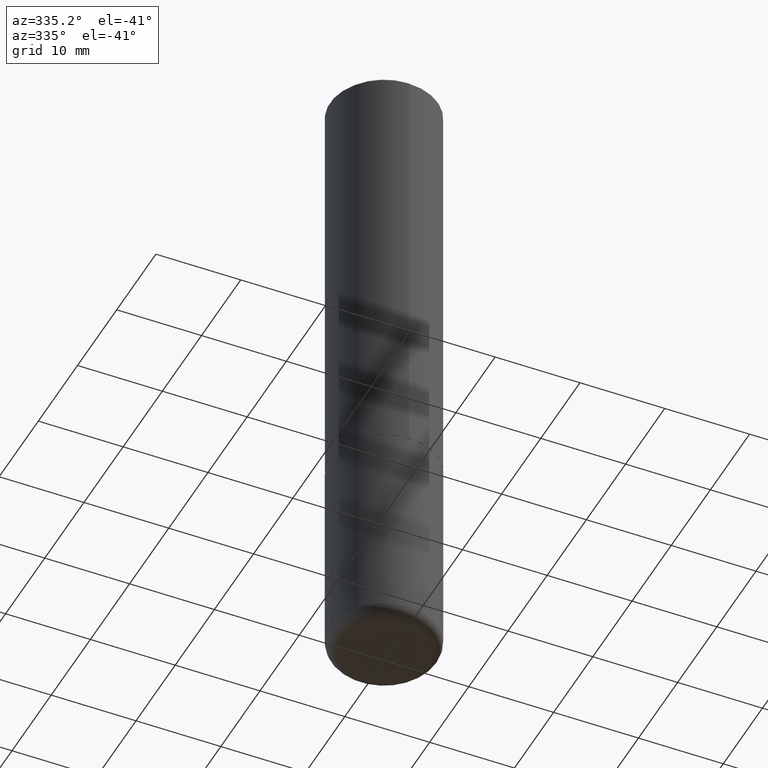
[diagram: clean part render]
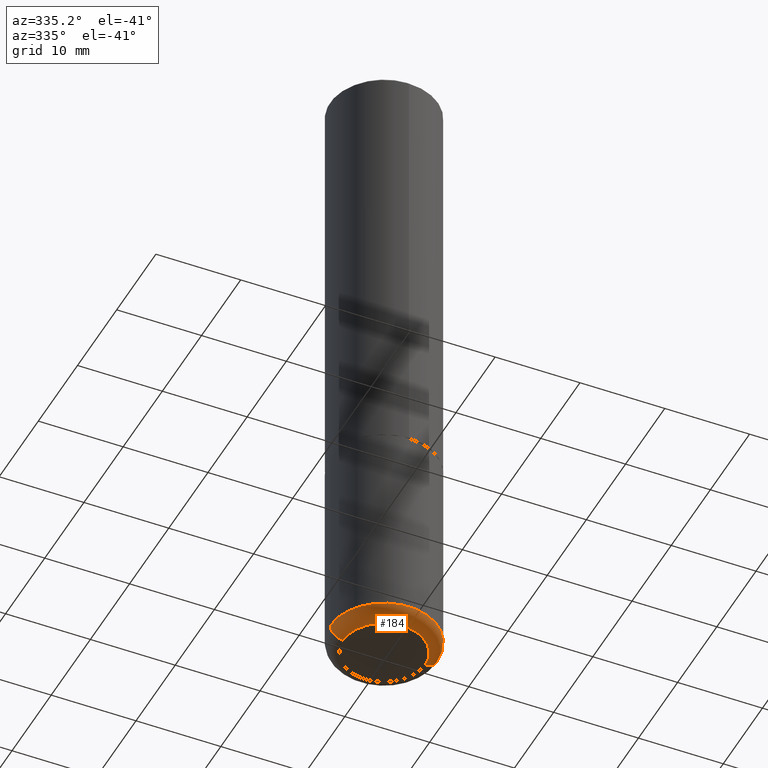
[diagram: same view with one face highlighted and labeled with its STEP entity id]
A machine part, auxiliary view. The second image highlights one B-rep face of the part: STEP entity #184.
In plain terms, the highlighted toroidal blend (fillet) surface has major radius 4.826 mm and minor (blend) radius 1.524 mm.
Its self-contained STEP definition (entity closure, byte-faithful):
#6 = EDGE_CURVE ( 'NONE', #182, #209, #66, .T. ) ;
#10 = DIRECTION ( 'NONE',  ( 1.000000000000000000, -6.982962677686265133E-15, 4.883557194083112340E-29 ) ) ;
#11 = ORIENTED_EDGE ( 'NONE', *, *, #285, .F. ) ;
#13 = AXIS2_PLACEMENT_3D ( 'NONE', #350, #319, #129 ) ;
#34 = DIRECTION ( 'NONE',  ( -1.000000000000000000, 7.105427357600997914E-15, 0.000000000000000000 ) ) ;
#51 = VERTEX_POINT ( 'NONE', #186 ) ;
#61 = DIRECTION ( 'NONE',  ( 1.000000000000000000, -6.982962677686275388E-15, 0.000000000000000000 ) ) ;
#66 = CIRCLE ( 'NONE', #13, 0.1899999999999999745 ) ;
#67 = AXIS2_PLACEMENT_3D ( 'NONE', #329, #231, #34 ) ;
#73 = CIRCLE ( 'NONE', #290, 0.05999999999999966471 ) ;
#89 = ORIENTED_EDGE ( 'NONE', *, *, #6, .T. ) ;
#105 = TOROIDAL_SURFACE ( 'NONE', #347, 0.1899999999999999745, 0.05999999999999968553 ) ;
#128 = FACE_OUTER_BOUND ( 'NONE', #229, .T. ) ;
#129 = DIRECTION ( 'NONE',  ( 1.000000000000000000, -6.982962677686273021E-15, 0.000000000000000000 ) ) ;
#148 = AXIS2_PLACEMENT_3D ( 'NONE', #292, #325, #260 ) ;
#149 = EDGE_CURVE ( 'NONE', #209, #239, #73, .T. ) ;
#182 = VERTEX_POINT ( 'NONE', #411 ) ;
#184 = ADVANCED_FACE ( 'NONE', ( #128 ), #105, .T. ) ;
#185 = ORIENTED_EDGE ( 'NONE', *, *, #149, .T. ) ;
#186 = CARTESIAN_POINT ( 'NONE',  ( -0.2499999999999998335, -8.488598296798600727E-15, -2.940000000000000391 ) ) ;
#197 = CARTESIAN_POINT ( 'NONE',  ( 0.1899999999999999745, -1.180120692528982640E-14, -2.999999999999999556 ) ) ;
#208 = CARTESIAN_POINT ( 'NONE',  ( 7.189678290184301639E-29, -1.026495513619884961E-14, -2.940000000000000391 ) ) ;
#209 = VERTEX_POINT ( 'NONE', #197 ) ;
#216 = CARTESIAN_POINT ( 'NONE',  ( 0.1899999999999999745, -1.159171804495923808E-14, -2.940000000000000391 ) ) ;
#225 = ORIENTED_EDGE ( 'NONE', *, *, #327, .F. ) ;
#229 = EDGE_LOOP ( 'NONE', ( #225, #89, #185, #11 ) ) ;
#231 = DIRECTION ( 'NONE',  ( 7.105427357601001859E-15, 1.000000000000000000, -3.491481338843145583E-15 ) ) ;
#239 = VERTEX_POINT ( 'NONE', #377 ) ;
#250 = DIRECTION ( 'NONE',  ( -6.982962677686266711E-15, -1.000000000000000000, 3.491481338843145583E-15 ) ) ;
#260 = DIRECTION ( 'NONE',  ( 1.000000000000000000, -6.982962677686262766E-15, 0.000000000000000000 ) ) ;
#273 = CIRCLE ( 'NONE', #67, 0.05999999999999966471 ) ;
#285 = EDGE_CURVE ( 'NONE', #51, #239, #295, .T. ) ;
#290 = AXIS2_PLACEMENT_3D ( 'NONE', #216, #250, #61 ) ;
#292 = CARTESIAN_POINT ( 'NONE',  ( 7.189678290184301639E-29, -1.026495513619884961E-14, -2.940000000000000391 ) ) ;
#295 = CIRCLE ( 'NONE', #148, 0.2500000000000000000 ) ;
#303 = DIRECTION ( 'NONE',  ( -2.445468806185136597E-29, 3.491481338843145583E-15, 1.000000000000000000 ) ) ;
#319 = DIRECTION ( 'NONE',  ( -2.445468806185136597E-29, 3.491481338843145583E-15, 1.000000000000000000 ) ) ;
#325 = DIRECTION ( 'NONE',  ( -2.445468806185136597E-29, 3.491481338843145583E-15, 1.000000000000000000 ) ) ;
#327 = EDGE_CURVE ( 'NONE', #182, #51, #273, .T. ) ;
#329 = CARTESIAN_POINT ( 'NONE',  ( -0.1899999999999999745, -8.914923938254659640E-15, -2.940000000000000391 ) ) ;
#347 = AXIS2_PLACEMENT_3D ( 'NONE', #208, #303, #10 ) ;
#350 = CARTESIAN_POINT ( 'NONE',  ( 7.336406418555408669E-29, -1.047444401652943478E-14, -2.999999999999999556 ) ) ;
#377 = CARTESIAN_POINT ( 'NONE',  ( 0.2499999999999998335, -1.201069580562041471E-14, -2.940000000000000391 ) ) ;
#411 = CARTESIAN_POINT ( 'NONE',  ( -0.1899999999999999745, -8.806505557691924342E-15, -2.999999999999999556 ) ) ;